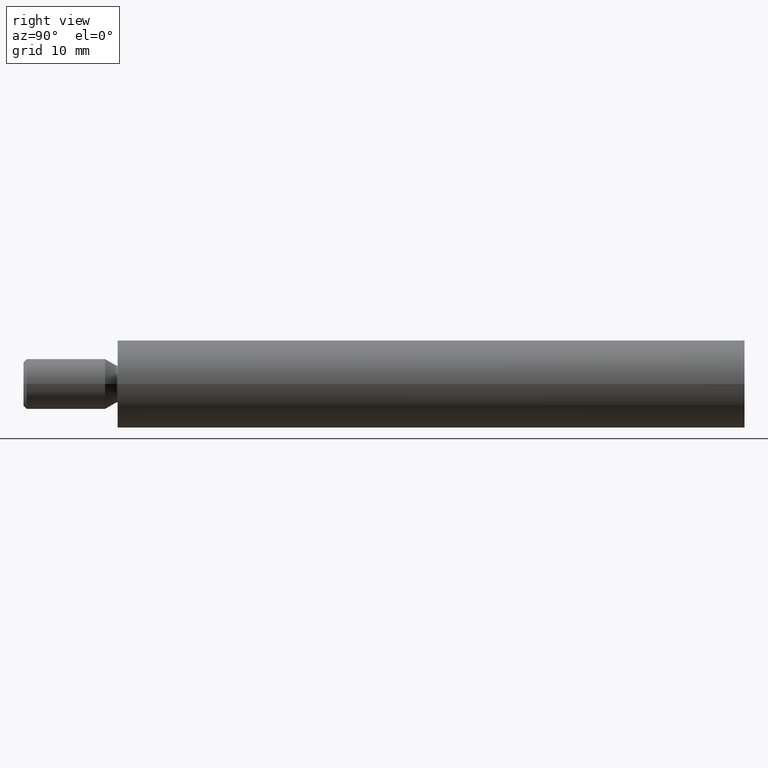
[diagram: clean part render]
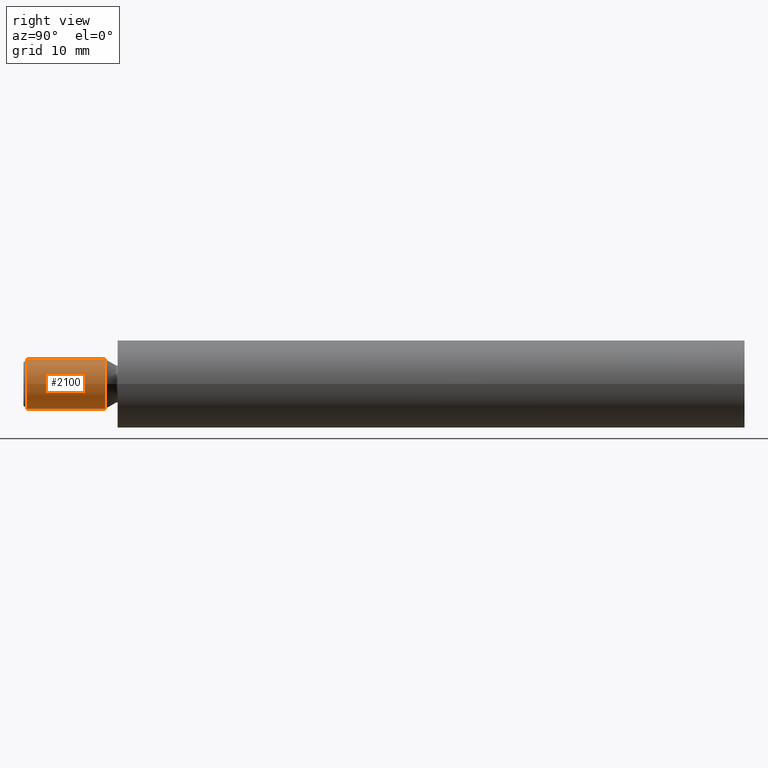
[diagram: same view with one face highlighted and labeled with its STEP entity id]
A machine part, right view. The second image highlights one B-rep face of the part: STEP entity #2100.
In plain terms, the highlighted cylindrical surface (bore or boss wall) has radius 4 mm, axis along (0, -1, -0).
Its self-contained STEP definition (entity closure, byte-faithful):
#206 = EDGE_CURVE ( 'NONE', #13185, #13185, #9986, .T. ) ;
#1394 = CYLINDRICAL_SURFACE ( 'NONE', #6194, 4.000000000000000888 ) ;
#1883 = CARTESIAN_POINT ( 'NONE',  ( 1.925929944387235853E-31, -15.00000000000000000, 0.000000000000000000 ) ) ;
#1928 = EDGE_LOOP ( 'NONE', ( #4655 ) ) ;
#2100 = ADVANCED_FACE ( 'NONE', ( #4535, #2366 ), #1394, .T. ) ;
#2291 = DIRECTION ( 'NONE',  ( -1.674721690771506269E-33, 1.000000000000000000, 0.000000000000000000 ) ) ;
#2366 = FACE_OUTER_BOUND ( 'NONE', #7148, .T. ) ;
#3067 = DIRECTION ( 'NONE',  ( 1.000000000000000000, 0.000000000000000000, 0.000000000000000000 ) ) ;
#3262 = CARTESIAN_POINT ( 'NONE',  ( 1.917556335933378125E-31, -14.49999999999998934, 0.000000000000000000 ) ) ;
#3404 = DIRECTION ( 'NONE',  ( 1.000000000000000000, 0.000000000000000000, 0.000000000000000000 ) ) ;
#3575 = CARTESIAN_POINT ( 'NONE',  ( 4.000000000000000000, -2.000000000000000000, 0.000000000000000000 ) ) ;
#4535 = FACE_OUTER_BOUND ( 'NONE', #1928, .T. ) ;
#4655 = ORIENTED_EDGE ( 'NONE', *, *, #206, .T. ) ;
#5766 = AXIS2_PLACEMENT_3D ( 'NONE', #3262, #2291, #3404 ) ;
#6055 = CARTESIAN_POINT ( 'NONE',  ( 1.708216124586939521E-31, -2.000000000000000000, 0.000000000000000000 ) ) ;
#6056 = CIRCLE ( 'NONE', #10114, 4.000000000000000000 ) ;
#6194 = AXIS2_PLACEMENT_3D ( 'NONE', #1883, #11319, #3067 ) ;
#6996 = DIRECTION ( 'NONE',  ( 1.000000000000000000, 0.000000000000000000, 0.000000000000000000 ) ) ;
#7148 = EDGE_LOOP ( 'NONE', ( #13401 ) ) ;
#9986 = CIRCLE ( 'NONE', #5766, 4.000000000000000888 ) ;
#10114 = AXIS2_PLACEMENT_3D ( 'NONE', #6055, #13436, #6996 ) ;
#10932 = CARTESIAN_POINT ( 'NONE',  ( 4.000000000000000888, -14.49999999999998934, 0.000000000000000000 ) ) ;
#11196 = VERTEX_POINT ( 'NONE', #3575 ) ;
#11319 = DIRECTION ( 'NONE',  ( 1.674721690771509348E-33, -1.000000000000000000, -0.000000000000000000 ) ) ;
#13185 = VERTEX_POINT ( 'NONE', #10932 ) ;
#13401 = ORIENTED_EDGE ( 'NONE', *, *, #13451, .T. ) ;
#13436 = DIRECTION ( 'NONE',  ( 1.674721690771509348E-33, -1.000000000000000000, -0.000000000000000000 ) ) ;
#13451 = EDGE_CURVE ( 'NONE', #11196, #11196, #6056, .T. ) ;